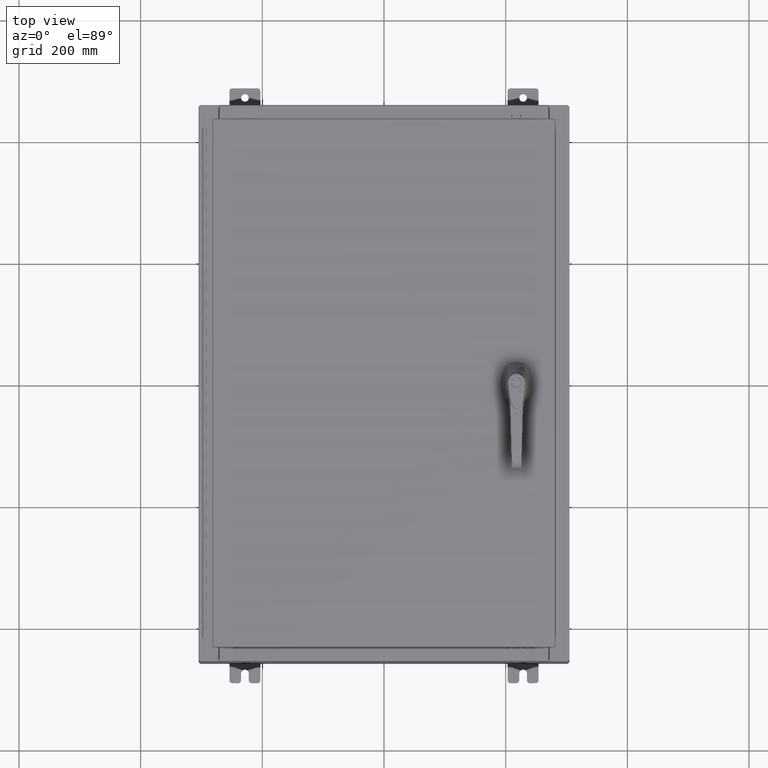
[diagram: clean part render]
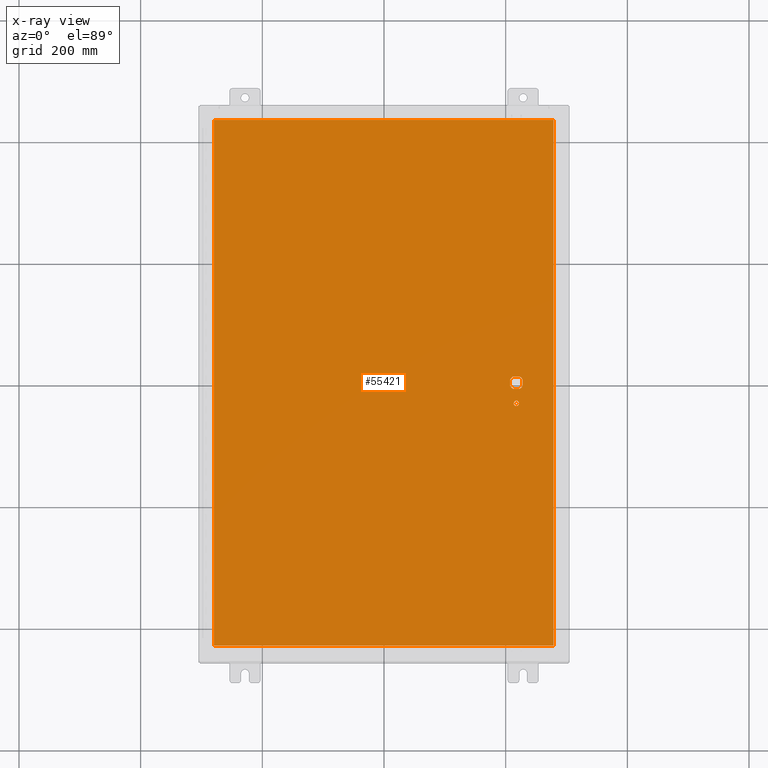
[diagram: x-ray — body ghosted, one internal face saturated and labeled with its STEP entity id]
A machine part, top view, then the same camera in x-ray: the body is ghosted and one INTERNAL B-rep face — a face not visible from any outside direction — is saturated and labeled: STEP entity #55421.
In plain terms, the highlighted planar face has unit normal (0, 0, -1).
Its self-contained STEP definition (entity closure, byte-faithful):
#288 = EDGE_CURVE ( 'NONE', #80124, #10652, #68741, .T. ) ;
#1183 = DIRECTION ( 'NONE',  ( -0.0000000000000000000, -0.0000000000000000000, 1.000000000000000000 ) ) ;
#2483 = CARTESIAN_POINT ( 'NONE',  ( 8.377772629243686700, -0.4029999999999250300, -0.07470000000000003000 ) ) ;
#2752 = DIRECTION ( 'NONE',  ( -0.0000000000000000000, -0.0000000000000000000, 1.000000000000000000 ) ) ;
#5129 = ORIENTED_EDGE ( 'NONE', *, *, #28025, .F. ) ;
#9023 = FACE_BOUND ( 'NONE', #55227, .T. ) ;
#10652 = VERTEX_POINT ( 'NONE', #121721 ) ;
#11088 = EDGE_CURVE ( 'NONE', #80519, #51743, #13924, .T. ) ;
#11091 = EDGE_CURVE ( 'NONE', #115907, #49332, #63883, .T. ) ;
#11271 = PLANE ( 'NONE',  #29858 ) ;
#13713 = EDGE_CURVE ( 'NONE', #97379, #54159, #53776, .T. ) ;
#13908 = CARTESIAN_POINT ( 'NONE',  ( 10.99029999999999600, -17.00629999999999600, -0.07470000000000000300 ) ) ;
#13924 = LINE ( 'NONE', #34900, #110984 ) ;
#15844 = DIRECTION ( 'NONE',  ( -0.0000000000000000000, -0.0000000000000000000, 1.000000000000000000 ) ) ;
#16008 = CARTESIAN_POINT ( 'NONE',  ( 8.577999999999995900, 0.0000000000000000000, -0.07470000000000003000 ) ) ;
#16454 = CARTESIAN_POINT ( 'NONE',  ( 10.99029999999999600, -17.00629999999999200, -0.07470000000000019700 ) ) ;
#17110 = CIRCLE ( 'NONE', #108143, 0.4499999999999156900 ) ;
#18293 = ORIENTED_EDGE ( 'NONE', *, *, #19409, .F. ) ;
#18688 = ORIENTED_EDGE ( 'NONE', *, *, #69810, .F. ) ;
#19409 = EDGE_CURVE ( 'NONE', #51743, #100817, #97135, .T. ) ;
#20324 = CARTESIAN_POINT ( 'NONE',  ( 8.980999999999921700, -0.2002273707563075900, -0.07470000000000003000 ) ) ;
#20758 = DIRECTION ( 'NONE',  ( 0.0000000000000000000, 0.0000000000000000000, -1.000000000000000000 ) ) ;
#21124 = CARTESIAN_POINT ( 'NONE',  ( 8.175000000000070000, 0.0000000000000000000, -0.07470000000000003000 ) ) ;
#21685 = EDGE_LOOP ( 'NONE', ( #75531, #18293, #92250, #18688 ) ) ;
#22029 = CARTESIAN_POINT ( 'NONE',  ( 8.406499999999994100, -1.338000000000000100, -0.07470000000000003000 ) ) ;
#24257 = EDGE_CURVE ( 'NONE', #54159, #97379, #65754, .T. ) ;
#25460 = DIRECTION ( 'NONE',  ( -1.000000000000000000, 0.0000000000000000000, 0.0000000000000000000 ) ) ;
#26086 = LINE ( 'NONE', #113125, #76026 ) ;
#26747 = VERTEX_POINT ( 'NONE', #68864 ) ;
#27678 = ORIENTED_EDGE ( 'NONE', *, *, #79211, .T. ) ;
#28025 = EDGE_CURVE ( 'NONE', #49384, #49332, #43146, .T. ) ;
#29556 = CARTESIAN_POINT ( 'NONE',  ( -10.99030000000000000, -17.00629999999999600, -0.07470000000000000300 ) ) ;
#29858 = AXIS2_PLACEMENT_3D ( 'NONE', #114061, #20758, #86481 ) ;
#30094 = CARTESIAN_POINT ( 'NONE',  ( 8.577999999999995900, -1.338000000000000100, -0.07470000000000003000 ) ) ;
#30310 = ORIENTED_EDGE ( 'NONE', *, *, #120429, .T. ) ;
#31099 = VERTEX_POINT ( 'NONE', #92217 ) ;
#32024 = AXIS2_PLACEMENT_3D ( 'NONE', #72124, #15844, #81586 ) ;
#33571 = DIRECTION ( 'NONE',  ( 1.000000000000000000, 0.0000000000000000000, 0.0000000000000000000 ) ) ;
#34413 = VECTOR ( 'NONE', #110202, 39.37007874015748100 ) ;
#34900 = CARTESIAN_POINT ( 'NONE',  ( -10.99030000000000500, 17.00630000000000700, -0.07470000000000347200 ) ) ;
#35308 = CARTESIAN_POINT ( 'NONE',  ( 8.577999999999995900, 0.0000000000000000000, -0.07470000000000003000 ) ) ;
#36007 = EDGE_LOOP ( 'NONE', ( #102742, #5129, #50320, #100464, #92752, #27678, #108980, #30310 ) ) ;
#36222 = EDGE_CURVE ( 'NONE', #60043, #80124, #26086, .T. ) ;
#37030 = FACE_OUTER_BOUND ( 'NONE', #21685, .T. ) ;
#38265 = DIRECTION ( 'NONE',  ( -1.000000000000000000, -0.0000000000000000000, -0.0000000000000000000 ) ) ;
#38901 = EDGE_CURVE ( 'NONE', #49384, #60043, #72405, .T. ) ;
#39104 = AXIS2_PLACEMENT_3D ( 'NONE', #69489, #2752, #97683 ) ;
#39573 = DIRECTION ( 'NONE',  ( -1.000000000000000000, 0.0000000000000000000, 0.0000000000000000000 ) ) ;
#43146 = LINE ( 'NONE', #100565, #74001 ) ;
#43481 = VECTOR ( 'NONE', #38265, 39.37007874015748100 ) ;
#44732 = DIRECTION ( 'NONE',  ( -1.000000000000000000, 1.776356839400251300E-015, 0.0000000000000000000 ) ) ;
#45536 = CARTESIAN_POINT ( 'NONE',  ( 8.778227370756305000, 0.4029999999999250300, -0.07470000000000003000 ) ) ;
#46402 = LINE ( 'NONE', #66578, #43481 ) ;
#47866 = CARTESIAN_POINT ( 'NONE',  ( 8.377772629243686700, 0.4029999999999252000, -0.07470000000000003000 ) ) ;
#49332 = VERTEX_POINT ( 'NONE', #20324 ) ;
#49384 = VERTEX_POINT ( 'NONE', #78193 ) ;
#50223 = AXIS2_PLACEMENT_3D ( 'NONE', #35308, #101058, #44732 ) ;
#50320 = ORIENTED_EDGE ( 'NONE', *, *, #38901, .T. ) ;
#51743 = VERTEX_POINT ( 'NONE', #29556 ) ;
#52974 = VECTOR ( 'NONE', #60179, 39.37007874015748100 ) ;
#53675 = DIRECTION ( 'NONE',  ( 2.728745808672812900E-015, -1.000000000000000000, 0.0000000000000000000 ) ) ;
#53776 = CIRCLE ( 'NONE', #118085, 0.1715000000000011500 ) ;
#54159 = VERTEX_POINT ( 'NONE', #94985 ) ;
#55227 = EDGE_LOOP ( 'NONE', ( #71530, #94524 ) ) ;
#55421 = ADVANCED_FACE ( 'NONE', ( #9023, #37030, #106144 ), #11271, .T. ) ;
#56768 = DIRECTION ( 'NONE',  ( -1.000000000000000000, 0.0000000000000000000, 0.0000000000000000000 ) ) ;
#57498 = CARTESIAN_POINT ( 'NONE',  ( 8.577999999999995900, 0.0000000000000000000, -0.07470000000000003000 ) ) ;
#60043 = VERTEX_POINT ( 'NONE', #45536 ) ;
#60179 = DIRECTION ( 'NONE',  ( 1.000000000000000000, -0.0000000000000000000, -0.0000000000000000000 ) ) ;
#61879 = CARTESIAN_POINT ( 'NONE',  ( 0.0000000000000000000, -0.4029999999999252000, -0.07470000000000003000 ) ) ;
#63883 = CIRCLE ( 'NONE', #50223, 0.4499999999999156900 ) ;
#65754 = CIRCLE ( 'NONE', #32024, 0.1715000000000011500 ) ;
#66578 = CARTESIAN_POINT ( 'NONE',  ( 10.99029999999999800, 17.00630000000000700, -0.07470000000000019700 ) ) ;
#66958 = DIRECTION ( 'NONE',  ( -1.000000000000000000, 8.881784197001256300E-016, 0.0000000000000000000 ) ) ;
#68741 = CIRCLE ( 'NONE', #39104, 0.4499999999999156900 ) ;
#68864 = CARTESIAN_POINT ( 'NONE',  ( 10.99029999999999600, 17.00630000000000700, -0.07470000000000000300 ) ) ;
#69489 = CARTESIAN_POINT ( 'NONE',  ( 8.577999999999995900, 0.0000000000000000000, -0.07470000000000003000 ) ) ;
#69810 = EDGE_CURVE ( 'NONE', #26747, #80519, #46402, .T. ) ;
#69845 = VECTOR ( 'NONE', #96735, 39.37007874015748100 ) ;
#71530 = ORIENTED_EDGE ( 'NONE', *, *, #24257, .T. ) ;
#71800 = EDGE_CURVE ( 'NONE', #100817, #26747, #81440, .T. ) ;
#72124 = CARTESIAN_POINT ( 'NONE',  ( 8.577999999999995900, -1.338000000000000100, -0.07470000000000003000 ) ) ;
#72405 = CIRCLE ( 'NONE', #101436, 0.4499999999999156900 ) ;
#72671 = DIRECTION ( 'NONE',  ( 0.0000000000000000000, -1.000000000000000000, 0.0000000000000000000 ) ) ;
#74001 = VECTOR ( 'NONE', #53675, 39.37007874015748100 ) ;
#75531 = ORIENTED_EDGE ( 'NONE', *, *, #71800, .F. ) ;
#76026 = VECTOR ( 'NONE', #56768, 39.37007874015748100 ) ;
#78193 = CARTESIAN_POINT ( 'NONE',  ( 8.980999999999921700, 0.2002273707563080300, -0.07470000000000003000 ) ) ;
#79211 = EDGE_CURVE ( 'NONE', #10652, #31099, #97802, .T. ) ;
#80124 = VERTEX_POINT ( 'NONE', #47866 ) ;
#80519 = VERTEX_POINT ( 'NONE', #90916 ) ;
#81440 = LINE ( 'NONE', #16454, #34413 ) ;
#81586 = DIRECTION ( 'NONE',  ( -1.000000000000000000, 0.0000000000000000000, 0.0000000000000000000 ) ) ;
#81744 = DIRECTION ( 'NONE',  ( -0.0000000000000000000, -0.0000000000000000000, 1.000000000000000000 ) ) ;
#86481 = DIRECTION ( 'NONE',  ( -1.000000000000000000, 0.0000000000000000000, -0.0000000000000000000 ) ) ;
#89281 = CARTESIAN_POINT ( 'NONE',  ( 8.778227370756305000, -0.4029999999999252000, -0.07470000000000003000 ) ) ;
#90916 = CARTESIAN_POINT ( 'NONE',  ( -10.99030000000000100, 17.00630000000000700, -0.07470000000000000300 ) ) ;
#92217 = CARTESIAN_POINT ( 'NONE',  ( 8.175000000000070000, -0.2002273707563079800, -0.07470000000000003000 ) ) ;
#92250 = ORIENTED_EDGE ( 'NONE', *, *, #11088, .F. ) ;
#92752 = ORIENTED_EDGE ( 'NONE', *, *, #288, .T. ) ;
#94524 = ORIENTED_EDGE ( 'NONE', *, *, #13713, .T. ) ;
#94985 = CARTESIAN_POINT ( 'NONE',  ( 8.749499999999997600, -1.338000000000000100, -0.07470000000000003000 ) ) ;
#95846 = DIRECTION ( 'NONE',  ( -0.0000000000000000000, -0.0000000000000000000, 1.000000000000000000 ) ) ;
#96298 = VERTEX_POINT ( 'NONE', #2483 ) ;
#96735 = DIRECTION ( 'NONE',  ( 0.0000000000000000000, -1.000000000000000000, 0.0000000000000000000 ) ) ;
#97135 = LINE ( 'NONE', #116538, #52974 ) ;
#97379 = VERTEX_POINT ( 'NONE', #22029 ) ;
#97683 = DIRECTION ( 'NONE',  ( -1.000000000000000000, 0.0000000000000000000, 0.0000000000000000000 ) ) ;
#97802 = LINE ( 'NONE', #21124, #69845 ) ;
#100464 = ORIENTED_EDGE ( 'NONE', *, *, #36222, .T. ) ;
#100565 = CARTESIAN_POINT ( 'NONE',  ( 8.980999999999921700, 2.450686610769031800E-014, -0.07470000000000003000 ) ) ;
#100817 = VERTEX_POINT ( 'NONE', #13908 ) ;
#101058 = DIRECTION ( 'NONE',  ( -0.0000000000000000000, -0.0000000000000000000, 1.000000000000000000 ) ) ;
#101436 = AXIS2_PLACEMENT_3D ( 'NONE', #16008, #81744, #25460 ) ;
#102742 = ORIENTED_EDGE ( 'NONE', *, *, #11091, .T. ) ;
#106144 = FACE_BOUND ( 'NONE', #36007, .T. ) ;
#108143 = AXIS2_PLACEMENT_3D ( 'NONE', #57498, #1183, #66958 ) ;
#108647 = VECTOR ( 'NONE', #33571, 39.37007874015748100 ) ;
#108980 = ORIENTED_EDGE ( 'NONE', *, *, #110427, .T. ) ;
#110202 = DIRECTION ( 'NONE',  ( 0.0000000000000000000, 1.000000000000000000, 0.0000000000000000000 ) ) ;
#110427 = EDGE_CURVE ( 'NONE', #31099, #96298, #17110, .T. ) ;
#110984 = VECTOR ( 'NONE', #72671, 39.37007874015748100 ) ;
#111549 = LINE ( 'NONE', #61879, #108647 ) ;
#113125 = CARTESIAN_POINT ( 'NONE',  ( 0.0000000000000000000, 0.4029999999999252000, -0.07470000000000003000 ) ) ;
#114061 = CARTESIAN_POINT ( 'NONE',  ( 0.0000000000000000000, 0.0000000000000000000, -0.07470000000000000300 ) ) ;
#115907 = VERTEX_POINT ( 'NONE', #89281 ) ;
#116538 = CARTESIAN_POINT ( 'NONE',  ( -10.99030000000000000, -17.00629999999999600, -0.07470000000000019700 ) ) ;
#118085 = AXIS2_PLACEMENT_3D ( 'NONE', #30094, #95846, #39573 ) ;
#120429 = EDGE_CURVE ( 'NONE', #96298, #115907, #111549, .T. ) ;
#121721 = CARTESIAN_POINT ( 'NONE',  ( 8.175000000000070000, 0.2002273707563080300, -0.07470000000000003000 ) ) ;